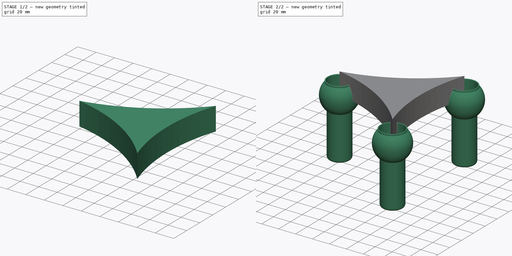
[diagram: build sequence overview — one tinted view per stage of 2, left to right]
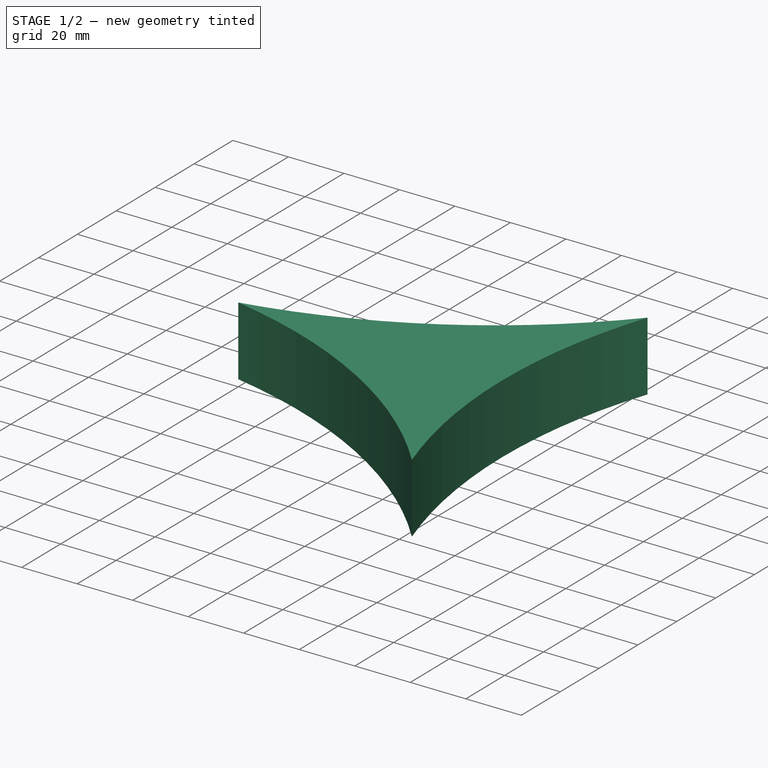
[diagram: stage 1 of 2 — iso view after this stage's code; geometry added in this stage tinted green]
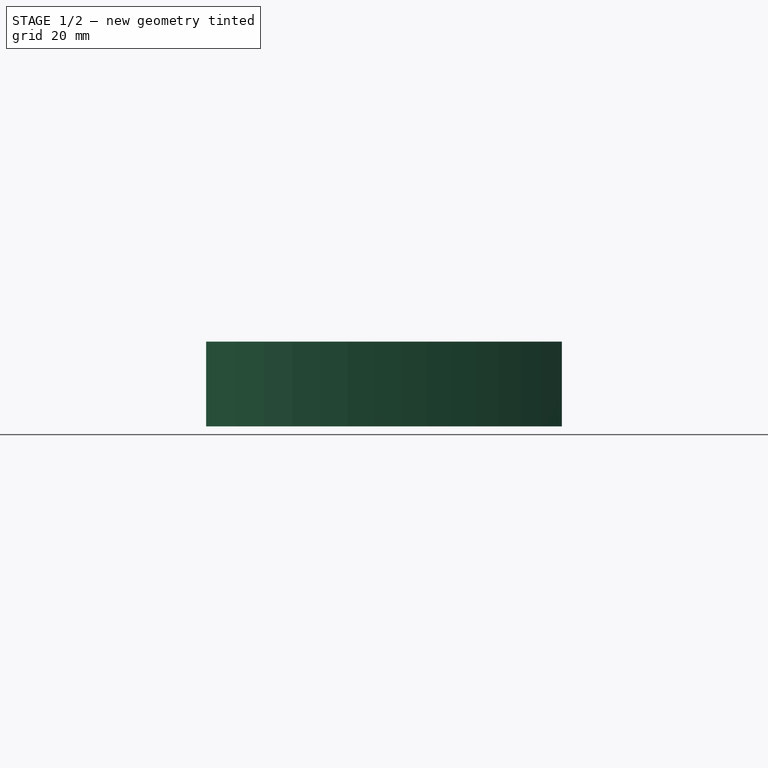
[diagram: stage 1 of 2 — front view after this stage's code; geometry added in this stage tinted green]
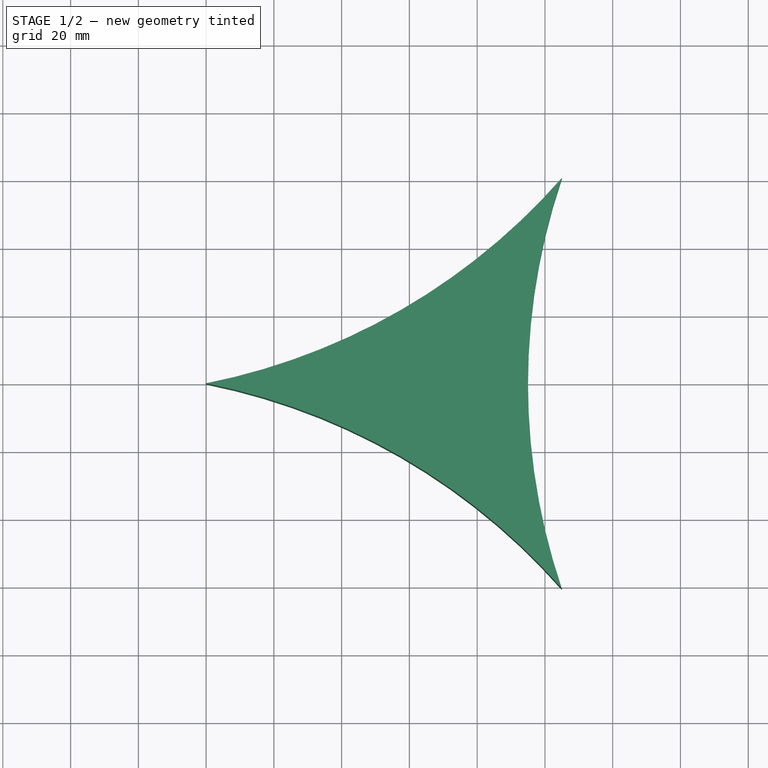
[diagram: stage 1 of 2 — top view after this stage's code; geometry added in this stage tinted green]
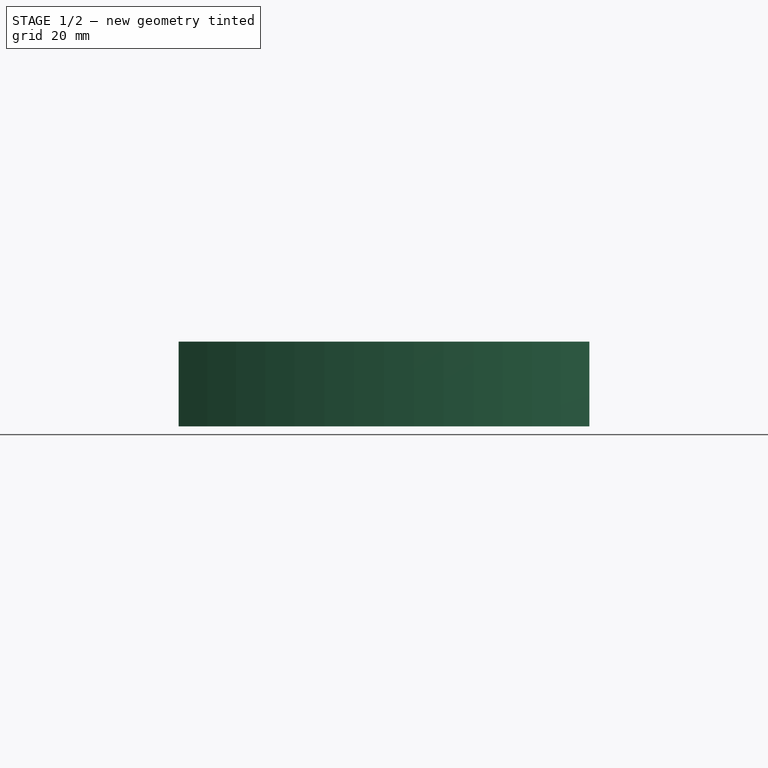
[diagram: stage 1 of 2 — right view after this stage's code; geometry added in this stage tinted green]
FCSTD DOCUMENT  (FreeCAD 1.0R39109 (Git))
Label: RegaloAngel
License: All rights reserved
LicenseURL: http://en.wikipedia.org/wiki/All_rights_reserved
objects: Sketcher::SketchObject×7, PartDesign::Body×3, PartDesign::Revolution×1, Part::FeaturePython×1, PartDesign::Pad×1, PartDesign::Pocket×1
note: 26 computed .brp shape members not serialized (recipe doc carries the construction recipe); baked Part::Feature solids carry a one-line shape summary decoded from their .brp

FEATURE [Sketcher::SketchObject] Sketch002
  ArcFitTolerance = 1e-06
  AttachmentSupport = -> [XY_Plane]
  FullyConstrained = true
  MakeInternals = false
  MapMode = 5
  sketch-geometry (4):
    g0: LineSegment StartX=-2e-15 StartY=2.3e-15 StartZ=0 EndX=105 EndY=-60.6218 EndZ=0
    g1: LineSegment StartX=105 StartY=-60.6218 StartZ=0 EndX=105 EndY=60.6218 EndZ=0
    g2: LineSegment StartX=105 StartY=60.6218 StartZ=0 EndX=-2e-15 EndY=2.3e-15 EndZ=0
    g3: Circle [constr] CenterX=70 CenterY=0 CenterZ=0 NormalX=0 NormalY=0 NormalZ=1 AngleXU=0 Radius=70
  constraints (11):
    c: Coincident(g0,g1)
    c: Coincident(g1,g2)
    c: Coincident(g2,g0)
    c: Equal(g0,g1)
    c: Equal(g0,g2)
    c: PointOnObject(g0,g3)
    c: PointOnObject(g1,g3)
    c: PointOnObject(g2,g3)
    c: Radius(g3) = 70
    c: PointOnObject(g3,g-1)
    c: Coincident(g2,g-1)
FEATURE [PartDesign::Pad] Pad
  Direction = (0,0,1)
  Length = 25
  Length2 = 10
  Profile = -> Sketch002
  ReferenceAxis = -> Sketch002 [N_Axis]
  Suppressed = false
  Type = 0
FEATURE [Sketcher::SketchObject] Sketch003
  ArcFitTolerance = 1e-06
  AttachmentSupport = -> [Pad]
  ExternalGeometry = -> [Pad]
  FullyConstrained = false
  MakeInternals = false
  MapMode = 5
  Placement = pos=(0,0,25) rot=(0,0,1;0rad)
  sketch-geometry (10):
    g0: LineSegment [constr] StartX=0 StartY=0 StartZ=0 EndX=69.9983 EndY=0 EndZ=0
    g1: LineSegment [constr] StartX=69.9983 StartY=0 StartZ=0 EndX=52.5 EndY=30.3109 EndZ=0
    g2: Circle [constr] CenterX=69.9983 CenterY=0 CenterZ=0 NormalX=0 NormalY=0 NormalZ=1 AngleXU=0 Radius=25
    g3: ArcOfCircle CenterX=-36.8828 CenterY=185.127 CenterZ=0 NormalX=0 NormalY=0 NormalZ=1 AngleXU=0 Radius=188.765 StartAngle=4.90904 EndAngle=5.56293
    g4: ArcOfCircle CenterX=283.719 CenterY=8.7e-14 CenterZ=0 NormalX=0 NormalY=0 NormalZ=1 AngleXU=0 Radius=188.72 StartAngle=2.81457 EndAngle=3.46862
    g5: ArcOfCircle CenterX=-36.8828 CenterY=-185.127 CenterZ=0 NormalX=0 NormalY=0 NormalZ=1 AngleXU=0 Radius=188.765 StartAngle=0.720254 EndAngle=1.37414
    g6: LineSegment StartX=-27.6188 StartY=80.6784 StartZ=0 EndX=-27.6188 EndY=-78.4684 EndZ=0
    g7: LineSegment StartX=-27.6188 StartY=-78.4684 StartZ=0 EndX=142.668 EndY=-78.4684 EndZ=0
    g8: LineSegment StartX=142.668 StartY=-78.4684 StartZ=0 EndX=142.668 EndY=80.6784 EndZ=0
    g9: LineSegment StartX=142.668 StartY=80.6784 StartZ=0 EndX=-27.6188 EndY=80.6784 EndZ=0
  constraints (23):
    c: Coincident(g0,g-1)
    c: Horizontal(g0)
    c: Symmetric(g-4,g-4,g1)
    c: Coincident(g0,g1)
    c: Diameter(g2) = 50
    c: Coincident(g2,g0)
    c: Coincident(g3,g-4)
    c: Coincident(g3,g0)
    c: Tangent(g3,g2)
    c: Coincident(g4,g3)
    c: Coincident(g4,g-5)
    c: Tangent(g4,g2)
    c: Coincident(g5,g0)
    c: Coincident(g5,g4)
    c: Tangent(g5,g2)
    c: Coincident(g6,g7)
    c: Coincident(g7,g8)
    c: Coincident(g8,g9)
    c: Coincident(g9,g6)
    c: Vertical(g6)
    c: Vertical(g8)
    c: Horizontal(g7)
    c: Horizontal(g9)
FEATURE [PartDesign::Pocket] Pocket
  BaseFeature = -> Pad
  Direction = (0,0,-1)
  Length = 5
  Length2 = 5
  Profile = -> Sketch003
  ReferenceAxis = -> Sketch003 [N_Axis]
  Suppressed = false
  Type = 1
FEATURE [Sketcher::SketchObject] Sketch004
  ArcFitTolerance = 1e-06
  AttachmentSupport = -> [Pocket]
  ExternalGeometry = -> [Sketch003]
  FullyConstrained = false
  MakeInternals = false
  MapMode = 5
  Placement = pos=(0,0,25) rot=(0,0,1;0rad)
  sketch-geometry (3):
    g0: LineSegment [constr] StartX=105 StartY=60.6218 StartZ=0 EndX=70 EndY=2.28756e-05 EndZ=0
    g1: LineSegment [constr] StartX=2.14836e-05 StartY=0 StartZ=0 EndX=70 EndY=2.28756e-05 EndZ=0
    g2: LineSegment [constr] StartX=105 StartY=-60.6218 StartZ=0 EndX=70 EndY=-2.28756e-05 EndZ=0
  constraints (6):
    c: PointOnObject(g2,g0)
    c: Coincident(g1,g0)
    c: Angle(g1,g-2) = 1.5708
    c: Angle(g-2,g2) = 0.523599
    c: Angle(g0,g-1) = 2.0944
    c: Distance(g1) = 70
FEATURE [Sketcher::SketchObject] Sketch005
  ArcFitTolerance = 1e-06
  AttachmentSupport = -> [Pocket]
  ExternalGeometry = -> [Sketch003]
  FullyConstrained = false
  MakeInternals = false
  MapMode = 5
  Placement = pos=(0,0,25) rot=(0,0,1;0rad)
  sketch-geometry (3):
    g0: LineSegment [constr] StartX=105 StartY=60.6218 StartZ=0 EndX=70 EndY=2.28756e-05 EndZ=0
    g1: LineSegment [constr] StartX=2.14836e-05 StartY=0 StartZ=0 EndX=70 EndY=2.28756e-05 EndZ=0
    g2: LineSegment [constr] StartX=105 StartY=-60.6218 StartZ=0 EndX=70 EndY=-2.28756e-05 EndZ=0
  constraints (6):
    c: PointOnObject(g2,g0)
    c: Coincident(g1,g0)
    c: Angle(g1,g-2) = 1.5708
    c: Angle(g-2,g2) = 0.523599
    c: Angle(g0,g-1) = 2.0944
    c: Distance(g1) = 70
FEATURE [PartDesign::Body] Body
  AllowCompound = false
  Group = -> [Sketch002,Pad,Sketch003,Pocket,Sketch004,Sketch005]
  Origin = -> Origin
  Tip = -> Pocket
FEATURE [PartDesign::Body] Body002
  AllowCompound = false
  Origin = -> Origin002
FEATURE [Sketcher::SketchObject] Sketch006
  ArcFitTolerance = 1e-06
  AttachmentSupport = -> [Pocket]
  ExternalGeometry = -> [Sketch003]
  FullyConstrained = false
  MakeInternals = false
  MapMode = 5
  Placement = pos=(0,0,25) rot=(0,0,1;0rad)
  sketch-geometry (6):
    g0: LineSegment [constr] StartX=54.14 StartY=93.7135 StartZ=0 EndX=17.5258 EndY=30.296 EndZ=0
    g1: LineSegment [constr] StartX=-52.4742 StartY=30.296 StartZ=0 EndX=17.5258 EndY=30.296 EndZ=0
    g2: LineSegment [constr] StartX=34.8768 StartY=-60.8947 StartZ=0 EndX=-0.123164 EndY=-0.272975 EndZ=0
    g3: ArcOfCircle CenterX=251.293 CenterY=-9.3545 CenterZ=0 NormalX=0 NormalY=0 NormalZ=1 AngleXU=0 Radius=222.469 StartAngle=2.65989 EndAngle=3.37539
    g4: LineSegment StartX=54.14 StartY=93.7135 StartZ=0 EndX=-0.123164 EndY=-0.272975 EndZ=0
    g5: LineSegment StartX=-0.123164 StartY=-0.272975 StartZ=0 EndX=34.8768 EndY=-60.8947 EndZ=0
  constraints (13):
    c: PointOnObject(g2,g0)
    c: Coincident(g1,g0)
    c: Angle(g1,g-2) = 1.5708
    c: Angle(g-2,g2) = 0.523599
    c: Angle(g0,g-1) = 2.0944
    c: Distance(g1) = 70
    c: Coincident(g3,g2)
    c: Coincident(g3,g0)
    c: Tangent(g3,g-3)
    c: Coincident(g0,g4)
    c: Coincident(g4,g2)
    c: Coincident(g4,g5)
    c: Coincident(g5,g2)
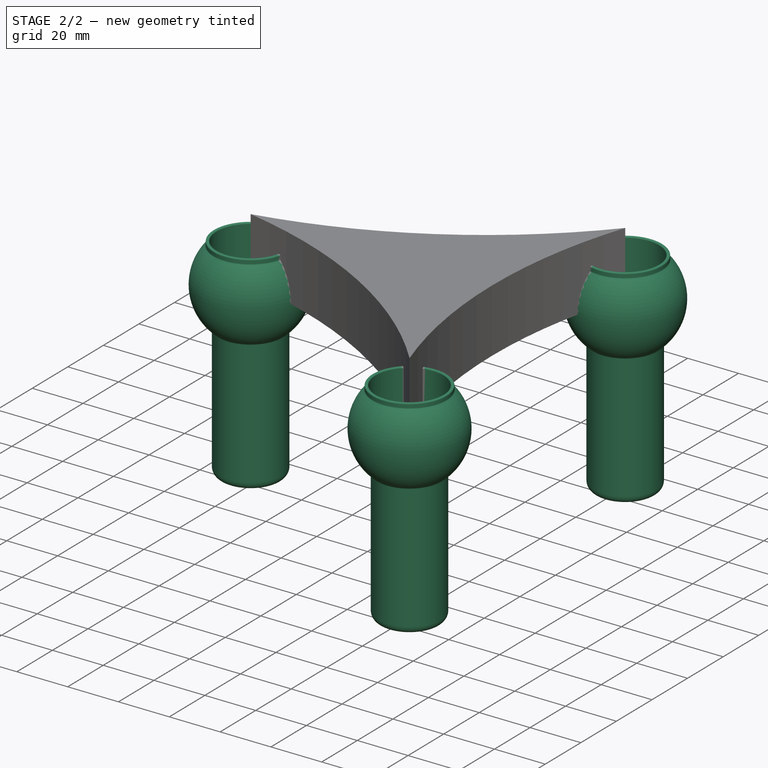
[diagram: stage 2 of 2 — iso view after this stage's code; geometry added in this stage tinted green]
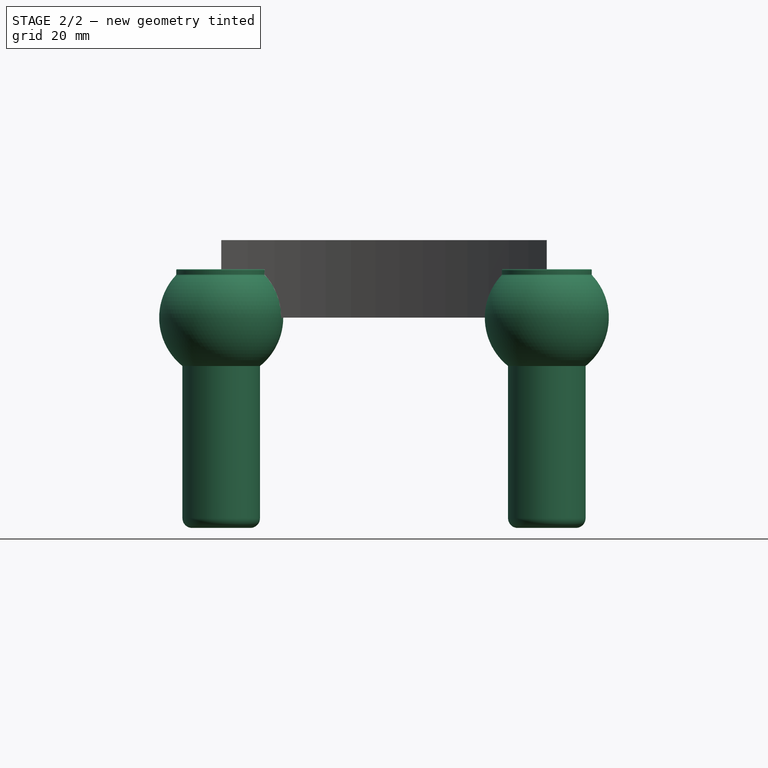
[diagram: stage 2 of 2 — front view after this stage's code; geometry added in this stage tinted green]
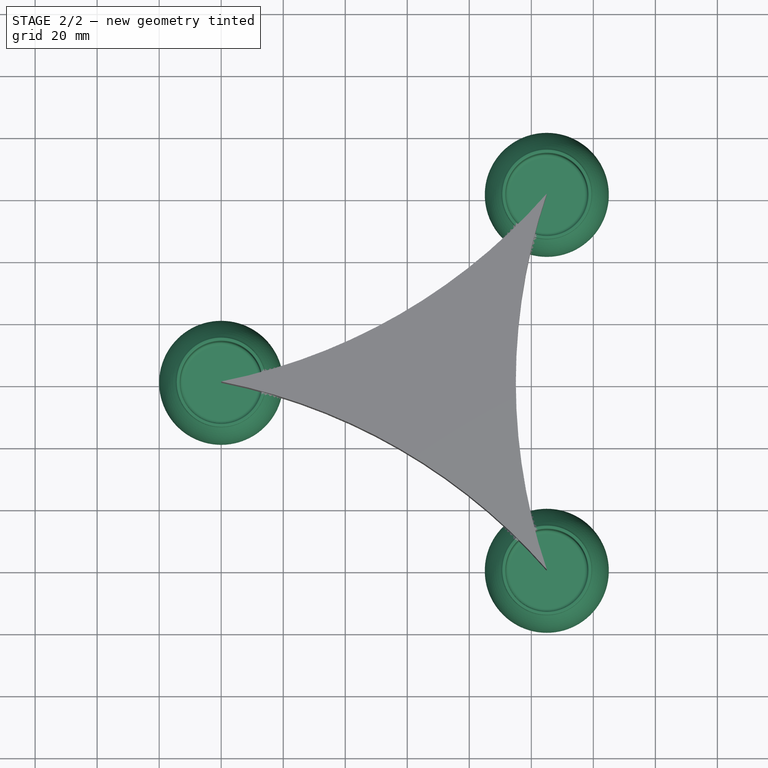
[diagram: stage 2 of 2 — top view after this stage's code; geometry added in this stage tinted green]
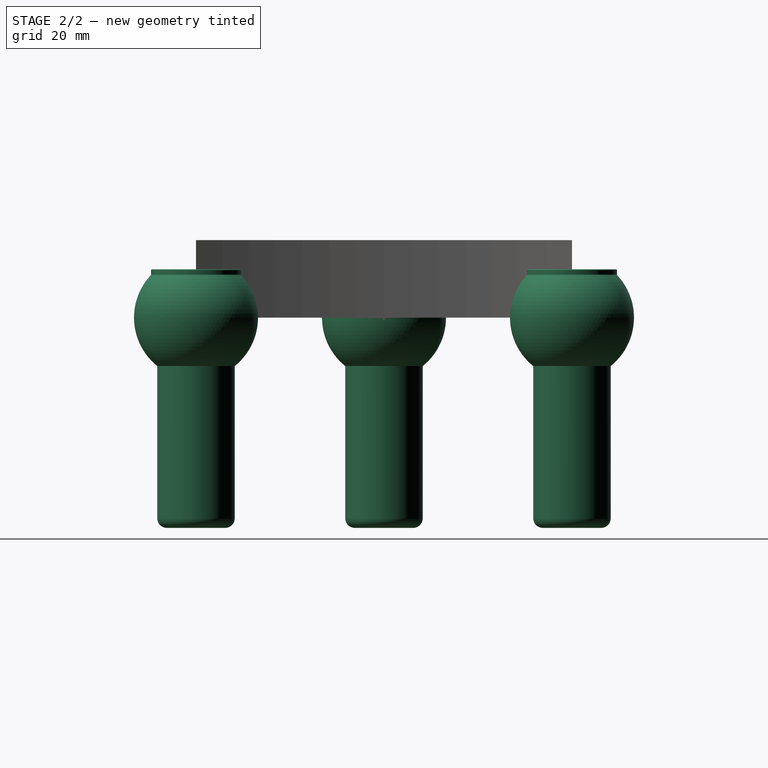
[diagram: stage 2 of 2 — right view after this stage's code; geometry added in this stage tinted green]
FEATURE [Sketcher::SketchObject] Sketch001
  ArcFitTolerance = 1e-06
  AttachmentSupport = -> [XZ_Plane001]
  FullyConstrained = false
  MakeInternals = false
  MapMode = 5
  Placement = pos=(0,0,0) rot=(1,0,0;1.5708rad)
  sketch-geometry (15):
    g0: ArcOfCircle CenterX=0 CenterY=0 CenterZ=0 NormalX=0 NormalY=0 NormalZ=1 AngleXU=0 Radius=20 StartAngle=5.38752 EndAngle=7.03282
    g1: LineSegment StartX=0 StartY=-67.8186 StartZ=0 EndX=9.36658 EndY=-67.8186 EndZ=0
    g2: LineSegment StartX=12.5 StartY=-15.6125 StartZ=0 EndX=12.5 EndY=-64.6851 EndZ=0
    g3: ArcOfCircle CenterX=9.36658 CenterY=-64.6851 CenterZ=0 NormalX=0 NormalY=0 NormalZ=1 AngleXU=0 Radius=3.13342 StartAngle=4.71239 EndAngle=6.28319
    g4: GeomPoint [constr] X=12.5 Y=-67.8186 Z=0
    g5: LineSegment StartX=0 StartY=-10.9243 StartZ=0 EndX=12.0278 EndY=-10.9243 EndZ=0
    g6: LineSegment StartX=13.2902 StartY=-9.66186 StartZ=0 EndX=13.2902 EndY=15.2453 EndZ=0
    g7: ArcOfCircle CenterX=12.0278 CenterY=-9.66186 CenterZ=0 NormalX=0 NormalY=0 NormalZ=1 AngleXU=0 Radius=1.26247 StartAngle=4.71239 EndAngle=6.28319
    g8: GeomPoint [constr] X=13.2902 Y=-10.9243 Z=0
    g9: ArcOfCircle CenterX=13.6574 CenterY=15.2453 CenterZ=0 NormalX=0 NormalY=0 NormalZ=1 AngleXU=0 Radius=0.367205 StartAngle=1.5708 EndAngle=3.14159
    g10: ArcOfCircle CenterX=14.133 CenterY=15.2545 CenterZ=0 NormalX=0 NormalY=0 NormalZ=1 AngleXU=0 Radius=0.367205 StartAngle=6.2461 EndAngle=7.62905
    g11: ArcOfCircle CenterX=15.0177 CenterY=13.9801 CenterZ=0 NormalX=0 NormalY=0 NormalZ=1 AngleXU=0 Radius=0.517656 StartAngle=3.14159 EndAngle=3.89123
    g12: LineSegment StartX=0 StartY=-10.9243 StartZ=0 EndX=0 EndY=-67.8186 EndZ=0
    g13: LineSegment StartX=13.6574 StartY=15.6125 StartZ=0 EndX=14.2149 EndY=15.6125 EndZ=0
    g14: LineSegment StartX=14.5 StartY=15.2409 StartZ=0 EndX=14.5 EndY=13.9801 EndZ=0
  constraints (26):
    c: Diameter(g0) = 40
    c: Coincident(g0,g-1)
    c: Coincident(g12,g1)
    c: Horizontal(g1)
    c: Coincident(g2,g0)
    c: Vertical(g2)
    c: PointOnObject(g4,g2)
    c: PointOnObject(g4,g1)
    c: Tangent(g2,g3) = 1.5708
    c: Tangent(g1,g3) = -1.5708
    c: Horizontal(g5)
    c: Vertical(g6)
    c: PointOnObject(g8,g6)
    c: PointOnObject(g8,g5)
    c: Tangent(g6,g7) = -1.5708
    c: Tangent(g5,g7) = -1.5708
    c: Tangent(g6,g9) = 1.5708
    c: Equal(g10,g9)
    c: Tangent(g0,g11) = 1.5708
    c: PointOnObject(g12,g5)
    c: Coincident(g13,g9)
    c: Coincident(g13,g10)
    c: Horizontal(g13)
    c: Coincident(g14,g10)
    c: Coincident(g14,g11)
    c: Vertical(g14)
FEATURE [PartDesign::Revolution] Revolution
  Angle = 360
  Angle2 = 60
  Axis = (0,2e-16,1)
  Base = (0,0,0)
  Placement = pos=(0,0,0) rot=(1,0,0;1.5708rad)
  Profile = -> Sketch001
  ReferenceAxis = -> Sketch001 [V_Axis]
  Reversed = true
  Suppressed = false
  Type = 0
FEATURE [Sketcher::SketchObject] Sketch
  ArcFitTolerance = 1e-06
  AttachmentSupport = -> [XY_Plane001]
  FullyConstrained = true
  MakeInternals = false
  MapMode = 5
FEATURE [PartDesign::Body] Body001
  AllowCompound = false
  Group = -> [Sketch001,Revolution,Sketch]
  Origin = -> Origin001
  Tip = -> Revolution
FEATURE [Part::FeaturePython] Array  # Draft array (typed FeaturePython)
  AlwaysSyncPlacement = false
  Angle = 360
  ArrayType = 1
  Axis = (0,0,1)
  Base = -> Body001
  Center = (70,0,0)
  Count = 3
  ExpandArray = false
  Fuse = false
  IntervalAxis = (0,0,0)
  IntervalX = (50,0,0)
  IntervalY = (0,50,0)
  IntervalZ = (0,0,50)
  NumberCircles = 3
  NumberPolar = 3
  NumberX = 2
  NumberY = 2
  NumberZ = 1
  PlacementList = 3 placements: [(0,0,0),(105,-60.6218,0),(105,60.6218,0)]
  RadialDistance = 50
  ScaleList = (3) [(1,1,1),(1,1,1),(1,1,1)]
  Symmetry = 1
  TangentialDistance = 25
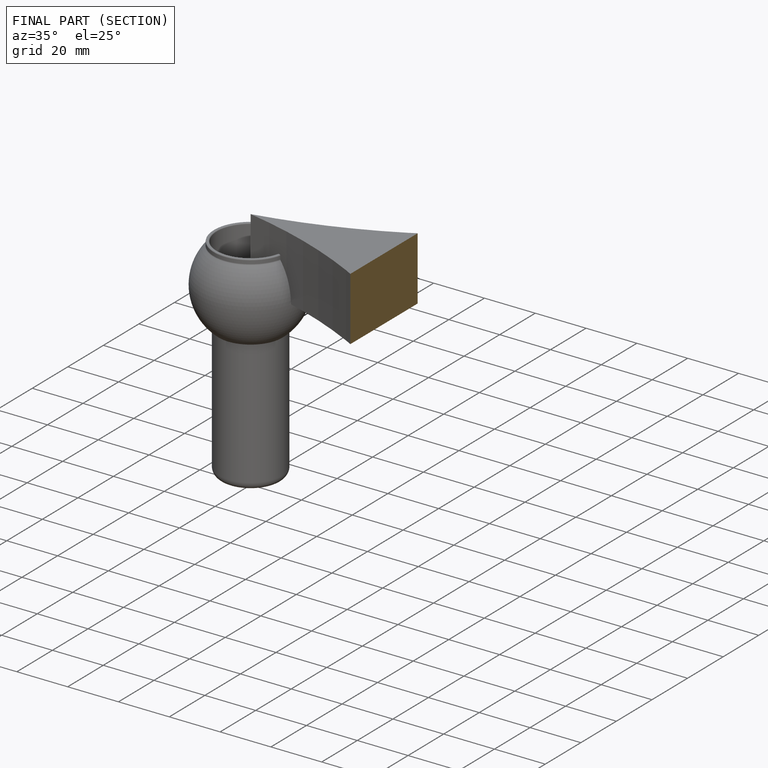
[diagram: finished part — half-section view (interior)]
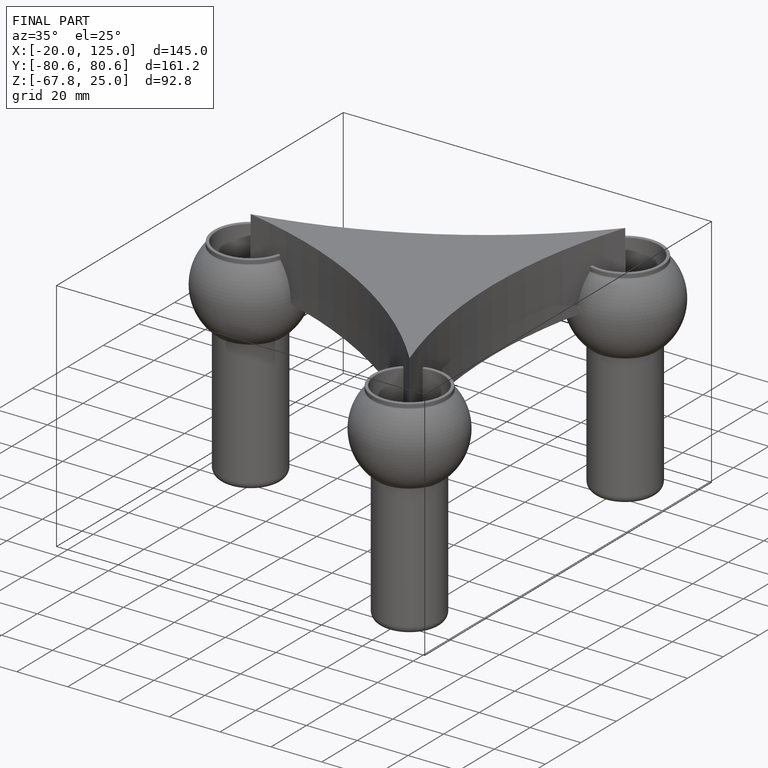
[diagram: finished part — iso view with bounding-box wireframe]
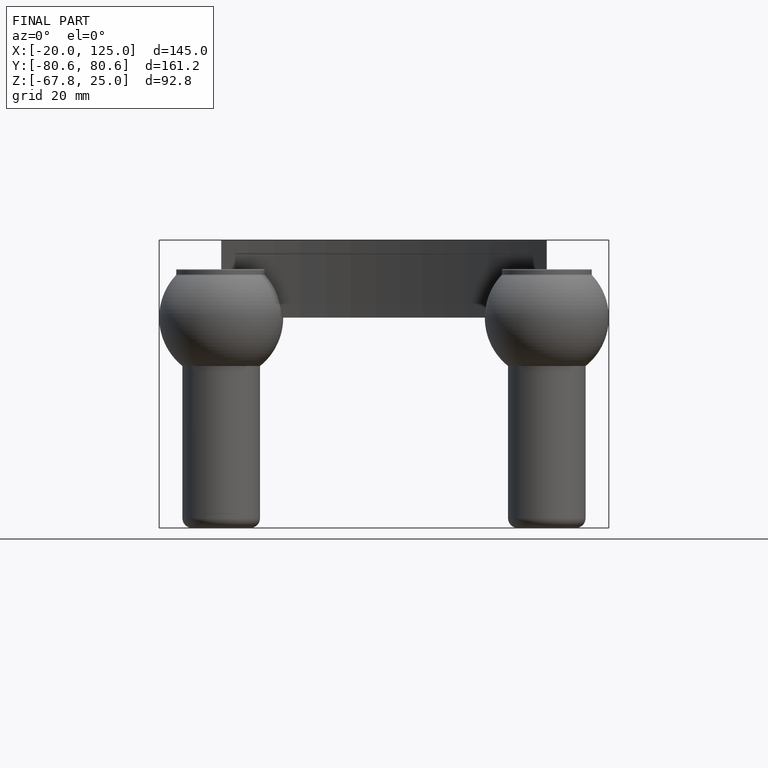
[diagram: finished part — front view with bounding-box wireframe]
